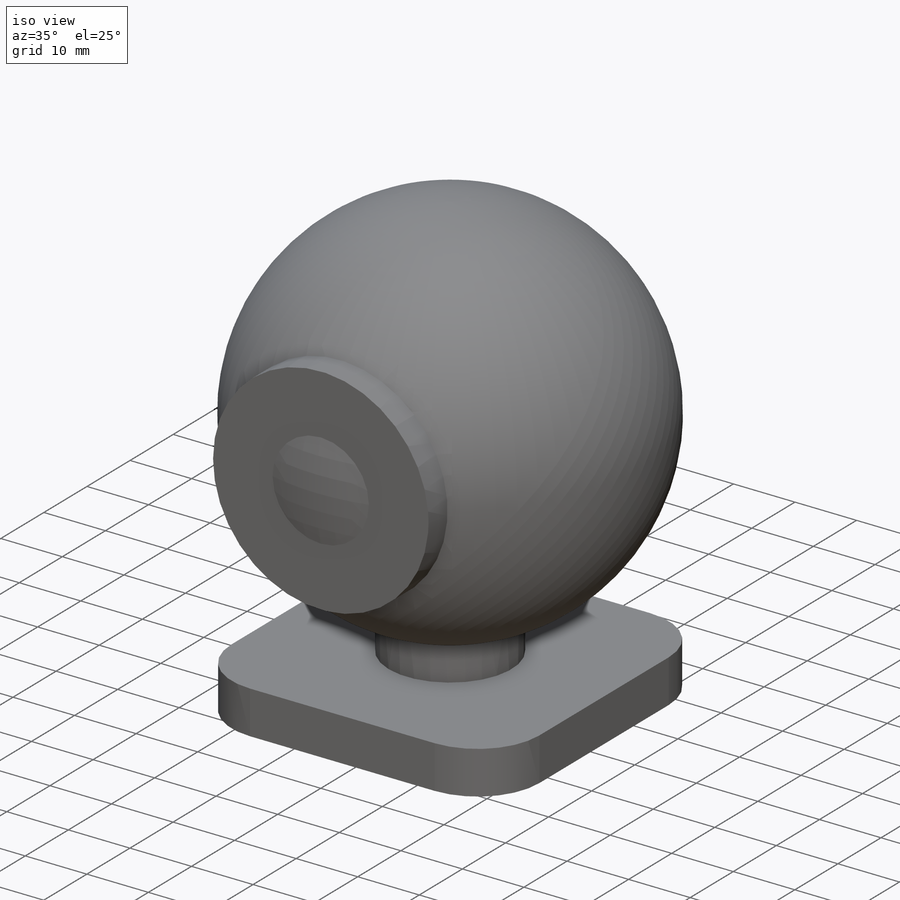
[diagram: iso view]
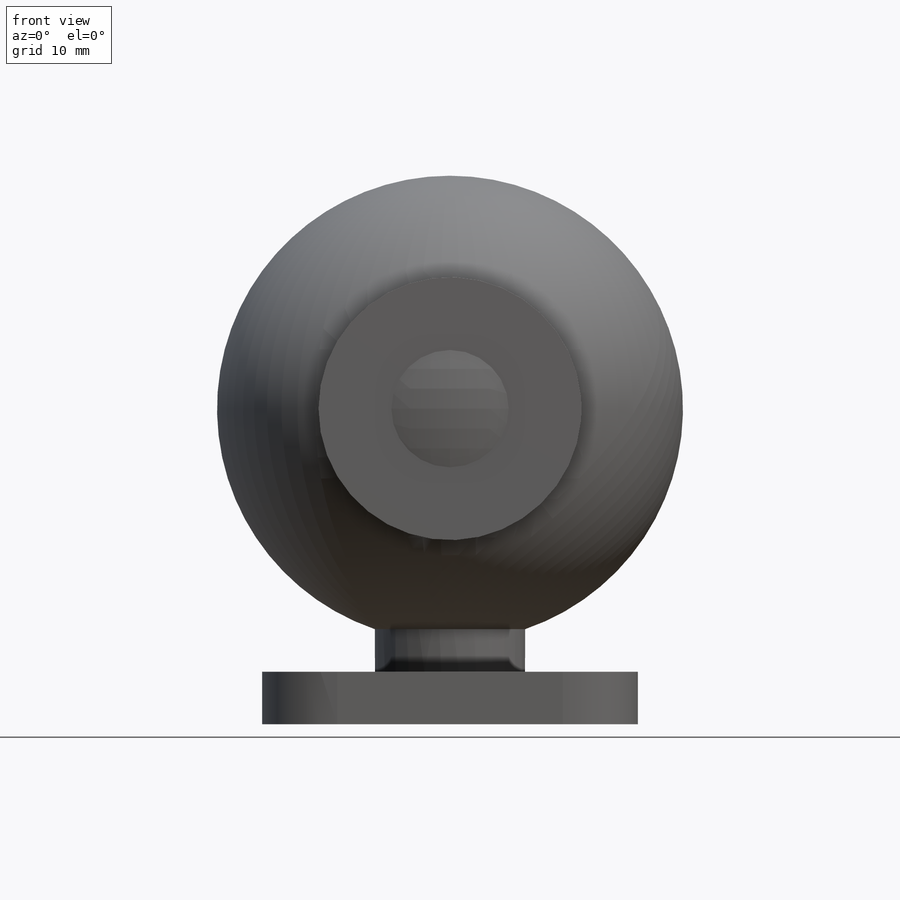
[diagram: front view]
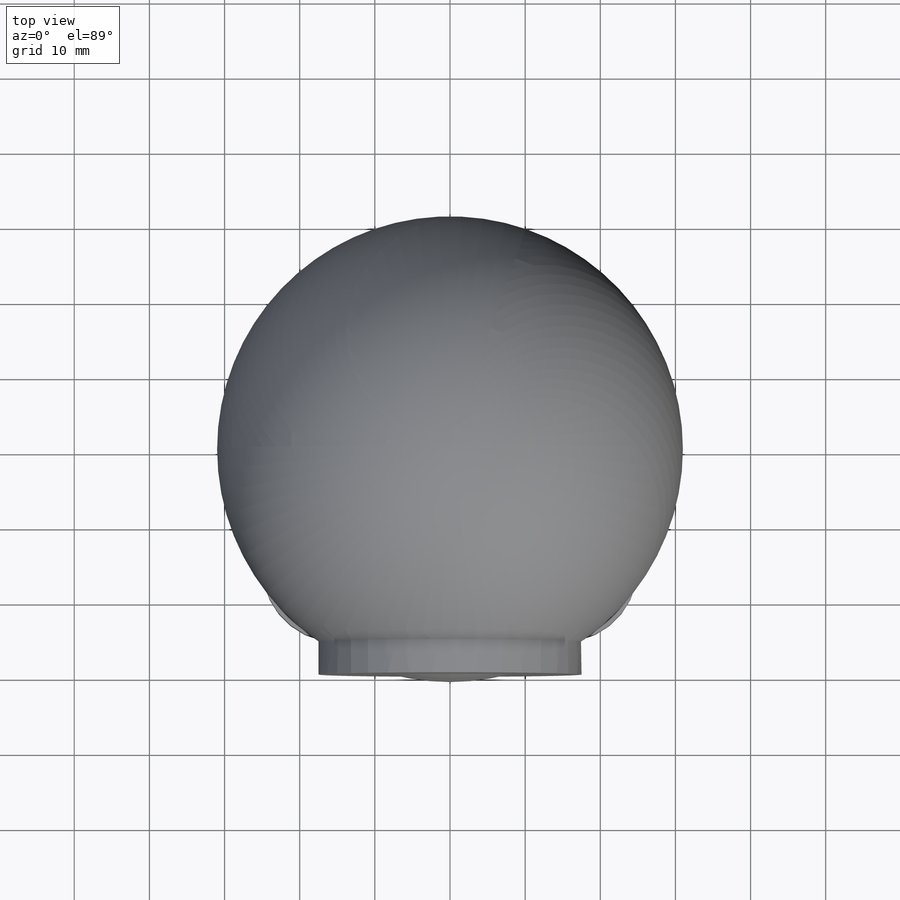
[diagram: top view]
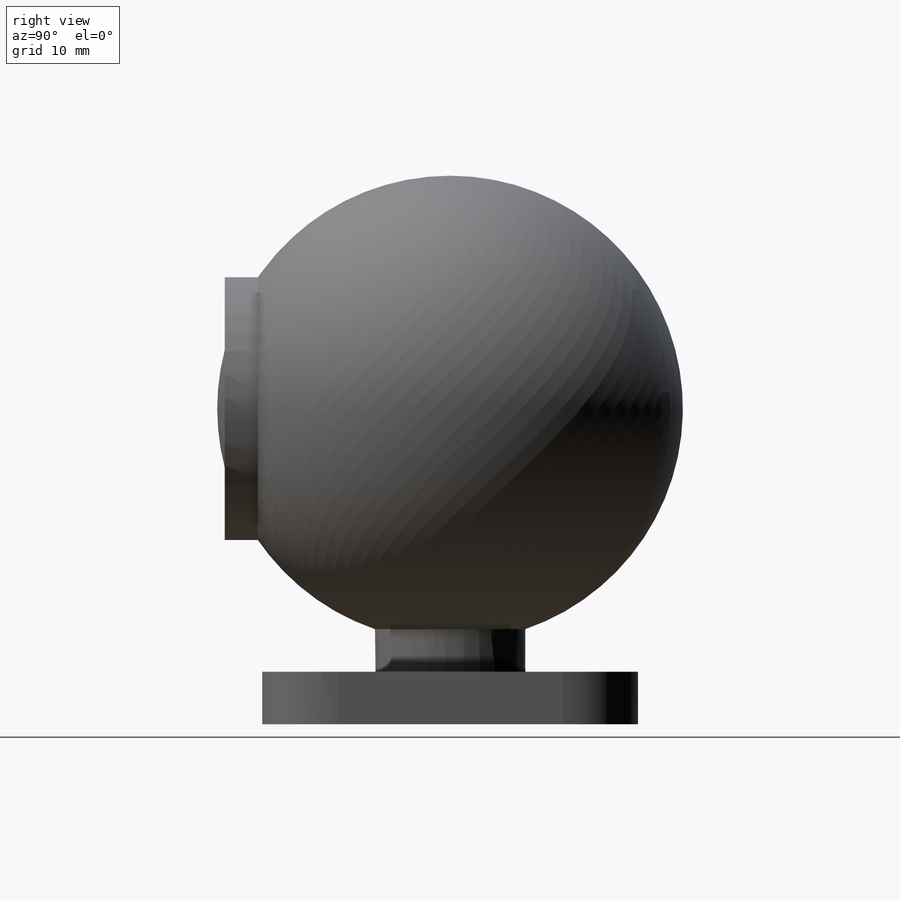
[diagram: right view]
SOLIDWORKS PART (.sldprt)
format: sldprt  version: not decoded by parser v0  size: 271,872 bytes
history: native  units: mm
features: sketch x5, plane x3, extrude x3, material x1, fillet x1 (+13 scaffold rows collapsed)
feature tree (26):
  scaffold x13  (default folders/planes/origin — collapsed)
  material  "Matériau <non spécifié>"
  plane  "Plan de face"
  plane  "Plan de dessus"
  plane  "Plan de droite"
  sketch  "Esquisse1"  dims[c1.D1=30.0mm c2.D1=360.0deg c2.D3=1.0mm c2.D4=1.0mm]
  sketch  "Esquisse3D1"  dims[D1=20.0mm]
  sketch  "Esquisse3"  dims[D1=35.0mm]
  extrude  "Extrusion1"  Depth=10mm
  sketch  "Esquisse3D2"  dims[D2=20.0mm D1=28.0mm]
  extrude  "Extrusion3"  Depth=7mm
  sketch  "Esquisse7"  dims[D1=50.0mm D2=50.0mm]
  extrude  "Extrusion4"  Depth=7mm
  fillet  "Congé1"  Radius=10mm
decode coverage: 9 of 9 modeling features carry decoded parameters
note: suppression state not decoded; provenance and decode notes live in map.json
